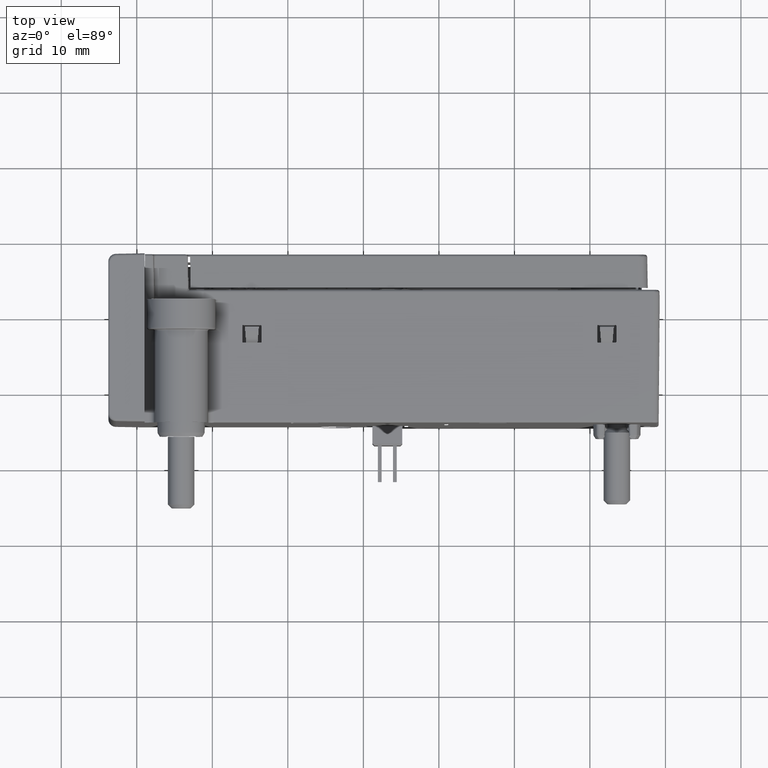
[diagram: clean part render]
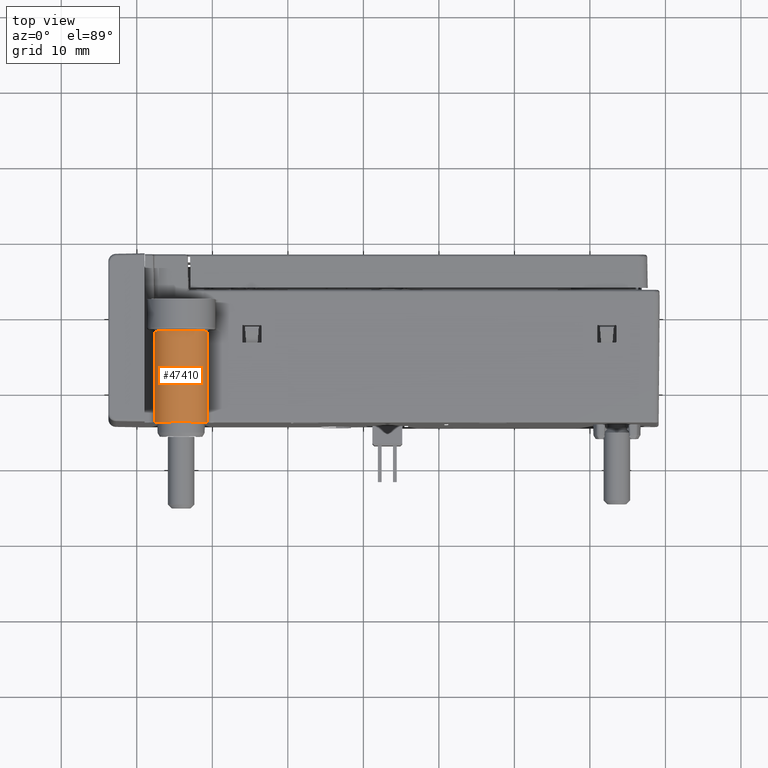
[diagram: same view with one face highlighted and labeled with its STEP entity id]
A machine part, top view. The second image highlights one B-rep face of the part: STEP entity #47410.
In plain terms, the highlighted cylindrical surface (edge-blend (fillet) strip) has radius 3.5 mm, axis along (0, -1, 0).
Its self-contained STEP definition (entity closure, byte-faithful):
#38955=CARTESIAN_POINT('',(-2.412545671053E1,-1.446156092283E1,
2.855175924779E1));
#38956=DIRECTION('',(0.E0,-1.E0,0.E0));
#38957=DIRECTION('',(1.E0,0.E0,0.E0));
#38958=AXIS2_PLACEMENT_3D('',#38955,#38956,#38957);
#39044=CARTESIAN_POINT('',(-2.412545671053E1,-2.411560922830E0,
2.855175924779E1));
#39045=DIRECTION('',(0.E0,1.E0,0.E0));
#39046=DIRECTION('',(-9.998476951564E-1,0.E0,1.745240643728E-2));
#39047=AXIS2_PLACEMENT_3D('',#39044,#39045,#39046);
#39049=DIRECTION('',(0.E0,-1.E0,1.009519070459E-10));
#39050=VECTOR('',#39049,1.205E1);
#39051=CARTESIAN_POINT('',(-2.062545671053E1,-2.411560922830E0,
2.855175924657E1));
#39052=LINE('',#39051,#39050);
#39057=DIRECTION('',(1.528993621432E-12,-1.E0,8.759222945858E-11));
#39058=VECTOR('',#39057,1.205E1);
#39059=CARTESIAN_POINT('',(-2.762492364359E1,-2.411560922830E0,
2.861284266926E1));
#39060=LINE('',#39059,#39058);
#45178=CARTESIAN_POINT('',(-2.062545671053E1,-1.446156092283E1,
2.855175924779E1));
#45179=CARTESIAN_POINT('',(-2.762492364357E1,-1.446156092283E1,
2.861284267032E1));
#45180=VERTEX_POINT('',#45178);
#45181=VERTEX_POINT('',#45179);
#46926=CARTESIAN_POINT('',(-2.062545671053E1,-2.411560922830E0,
2.855175924657E1));
#46927=VERTEX_POINT('',#46926);
#46930=CARTESIAN_POINT('',(-2.762492364357E1,-2.411560922830E0,
2.861284267032E1));
#46931=VERTEX_POINT('',#46930);
#47396=CARTESIAN_POINT('',(-2.412545671053E1,-2.161560922830E0,
2.855175924779E1));
#47397=DIRECTION('',(0.E0,-1.E0,0.E0));
#47398=DIRECTION('',(0.E0,0.E0,1.E0));
#47399=AXIS2_PLACEMENT_3D('',#47396,#47397,#47398);
#47400=CYLINDRICAL_SURFACE('',#47399,3.5E0);
#47402=ORIENTED_EDGE('',*,*,#47401,.T.);
#47404=ORIENTED_EDGE('',*,*,#47403,.T.);
#47405=ORIENTED_EDGE('',*,*,#47231,.T.);
#47407=ORIENTED_EDGE('',*,*,#47406,.F.);
#47408=EDGE_LOOP('',(#47402,#47404,#47405,#47407));
#47409=FACE_OUTER_BOUND('',#47408,.F.);
#47410=ADVANCED_FACE('',(#47409),#47400,.T.);
#38959=CIRCLE('',#38958,3.5E0);
#39048=CIRCLE('',#39047,3.5E0);
#47231=EDGE_CURVE('',#45180,#45181,#38959,.T.);
#47401=EDGE_CURVE('',#46931,#46927,#39048,.T.);
#47403=EDGE_CURVE('',#46927,#45180,#39052,.T.);
#47406=EDGE_CURVE('',#46931,#45181,#39060,.T.);